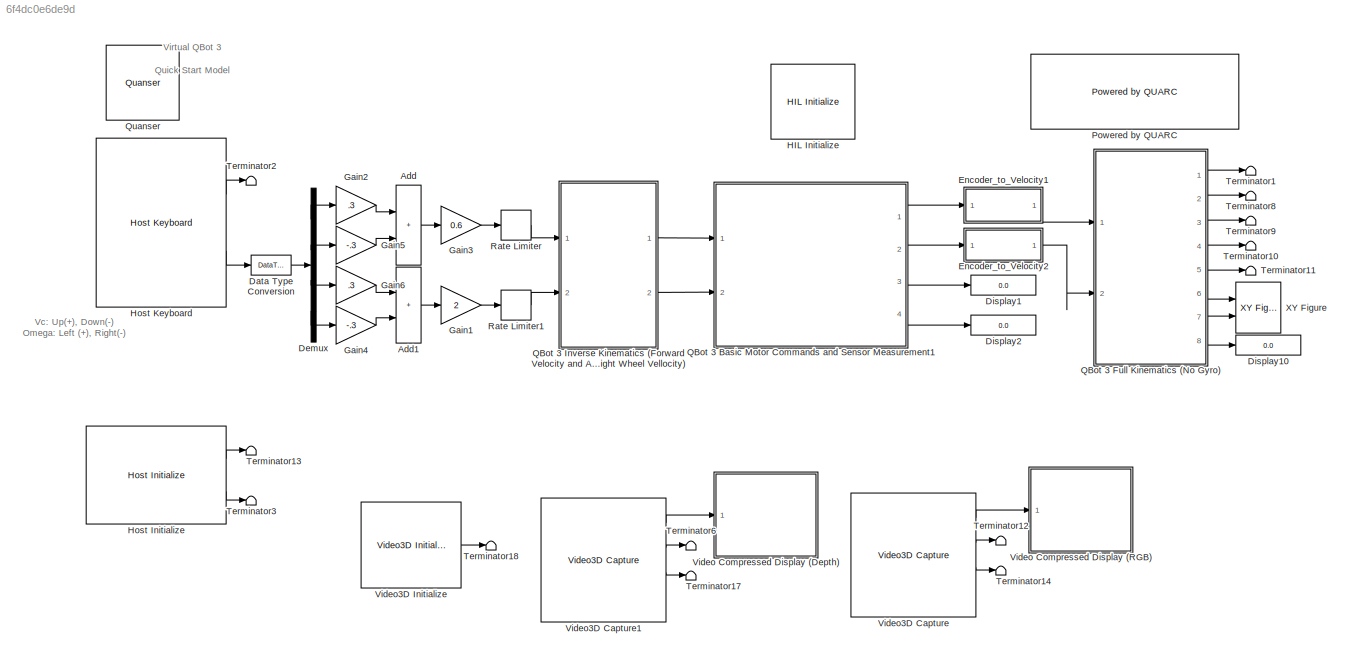
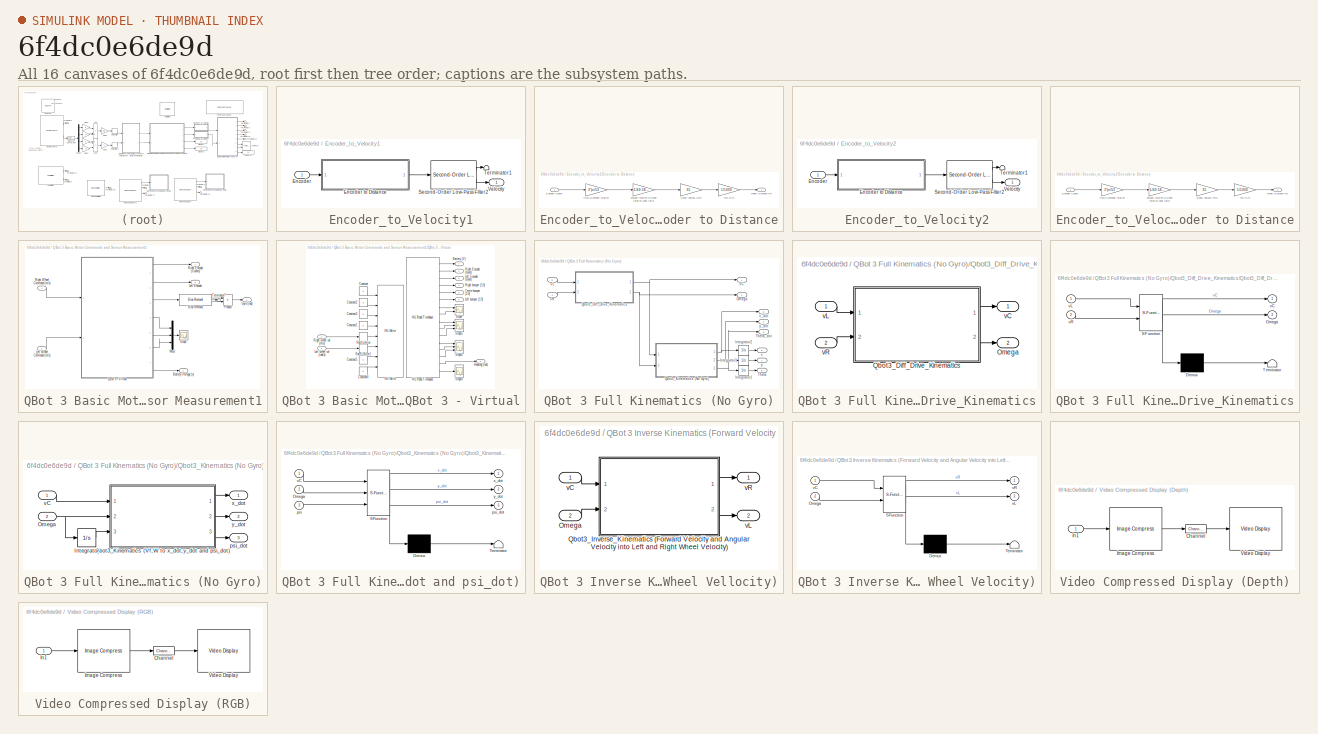
[diagram: thumbnail index - all 16 canvases of the model, root first then tree order]
MODEL slx_6f4dc0e6de9d
KIND model
CONFIG AbsTol = auto
CONFIG EnableMultiTasking = on
CONFIG FixedStep = 0.01
CONFIG MaxStep = auto
CONFIG MinStep = auto
CONFIG RelTol = 1e-3
CONFIG SampleTimeConstraint = Unconstrained
CONFIG SolverName = ode1
CONFIG StartTime = 0.0
CONFIG StopTime = inf
BLOCK [Sum] Add
  IconShape = rectangular
  Ports = [2, 1]
BLOCK [Sum] Add1
  IconShape = rectangular
  Ports = [2, 1]
BLOCK [DataTypeConversion] Data Type Conversion
  RndMeth = Floor
  SaturateOnIntegerOverflow = off
BLOCK [Demux] Demux
  Ports = [1, 4]
BLOCK [Display] Display1
  Ports = [1]
BLOCK [Display] Display10
  Ports = [1]
BLOCK [Display] Display2
  Ports = [1]
BLOCK [SubSystem] Encoder_to_Velocity1
  Ports = [1, 1]
BLOCK [Inport] Encoder_to_Velocity1/Encoder
BLOCK [SubSystem] Encoder_to_Velocity1/Encoder to Distance
  Ports = [1, 1]
BLOCK [Gain] Encoder_to_Velocity1/Encoder to Distance/ encoder rotation to wheel rotation (gear ratio)
  Gain = 1/49.5833
BLOCK [Inport] Encoder_to_Velocity1/Encoder to Distance/Encoder Counts
BLOCK [Outport] Encoder_to_Velocity1/Encoder to Distance/Wheel Distance (m)
BLOCK [Gain] Encoder_to_Velocity1/Encoder to Distance/mm to m
  Gain = 1/1000
BLOCK [Gain] Encoder_to_Velocity1/Encoder to Distance/ticks to encoder rotation
  Gain = 2*pi/52
BLOCK [Gain] Encoder_to_Velocity1/Encoder to Distance/wheel radious (mm)
  Gain = 35
BLOCK [Reference] Encoder_to_Velocity1/Second-Order Low-Pass Filter2  REF=quarc_library/Continuous/Second-Order
Low-Pass Filter
  Ports = [1, 2]
  SourceBlock = quarc_library/Continuous/Second-Order\nLow-Pass Filter
  SourceProductName = QUARC Targets
  SourceType = Second-Order Low-Pass Filter
BLOCK [Terminator] Encoder_to_Velocity1/Terminator1
BLOCK [Outport] Encoder_to_Velocity1/Velocity
BLOCK [SubSystem] Encoder_to_Velocity2
  Ports = [1, 1]
BLOCK [Inport] Encoder_to_Velocity2/Encoder
BLOCK [SubSystem] Encoder_to_Velocity2/Encoder to Distance
  Ports = [1, 1]
BLOCK [Gain] Encoder_to_Velocity2/Encoder to Distance/ encoder rotation to wheel rotation (gear ratio)
  Gain = 1/49.5833
BLOCK [Inport] Encoder_to_Velocity2/Encoder to Distance/Encoder Counts
BLOCK [Outport] Encoder_to_Velocity2/Encoder to Distance/Wheel Distance (m)
BLOCK [Gain] Encoder_to_Velocity2/Encoder to Distance/mm to m
  Gain = 1/1000
BLOCK [Gain] Encoder_to_Velocity2/Encoder to Distance/ticks to encoder rotation
  Gain = 2*pi/52
BLOCK [Gain] Encoder_to_Velocity2/Encoder to Distance/wheel radious (mm)
  Gain = 35
BLOCK [Reference] Encoder_to_Velocity2/Second-Order Low-Pass Filter2  REF=quarc_library/Continuous/Second-Order
Low-Pass Filter
  Ports = [1, 2]
  SourceBlock = quarc_library/Continuous/Second-Order\nLow-Pass Filter
  SourceProductName = QUARC Targets
  SourceType = Second-Order Low-Pass Filter
BLOCK [Terminator] Encoder_to_Velocity2/Terminator1
BLOCK [Outport] Encoder_to_Velocity2/Velocity
BLOCK [Gain] Gain1
  Gain = 2
BLOCK [Gain] Gain2
  Gain = .3
BLOCK [Gain] Gain3
  Gain = 0.6
BLOCK [Gain] Gain4
  Gain = -.3
BLOCK [Gain] Gain5
  Gain = -.3
BLOCK [Gain] Gain6
  Gain = .3
BLOCK [Reference] HIL Initialize  REF=quarc_library/Data Acquisition/Generic/Configuration/HIL Initialize
  AttributesFormatString = %<object_name> (%<board_type>-%<board_number>)
  Ports = []
  Priority = -99
  SourceBlock = quarc_library/Data Acquisition/Generic/Configuration/HIL Initialize
  SourceProductName = QUARC Targets
  SourceType = HIL Initialize
  UserDataPersistent = on
BLOCK [Reference] Host Initialize  REF=quarc_library/Devices/Peripherals/Host/Host Initialize
  Ports = [0, 2]
  SourceBlock = quarc_library/Devices/Peripherals/Host/Host Initialize
  SourceProductName = QUARC Targets
  SourceType = Host Initialize
BLOCK [Reference] Host Keyboard  REF=quarc_library/Devices/Peripherals/Host/Host Keyboard
  Ports = [0, 2]
  SourceBlock = quarc_library/Devices/Peripherals/Host/Host Keyboard
  SourceProductName = QUARC Targets
  SourceType = Host Keyboard
BLOCK [Reference] Powered by QUARC  REF=quarc_library/Logos/Powered by QUARC
  Ports = []
  SourceBlock = quarc_library/Logos/Powered by QUARC
  SourceProductName = QUARC Targets
  SourceType = Powered by QUARC
BLOCK [SubSystem] QBot 3 Basic Motor Commands and Sensor Measurement1
  Ports = [2, 4]
BLOCK [Outport] QBot 3 Basic Motor Commands and Sensor Measurement1/Battery Voltage (v)
  Port = 4
  VectorParamsAs1DForOutWhenUnconnected = off
BLOCK [Reference] QBot 3 Basic Motor Commands and Sensor Measurement1/Bias Removal  REF=quarc_library/Discrete/Bias Removal
  Ports = [1, 3]
  SourceBlock = quarc_library/Discrete/Bias Removal
  SourceProductName = QUARC Targets
  SourceType = Bias Removal
BLOCK [Outport] QBot 3 Basic Motor Commands and Sensor Measurement1/Gyro (rad)
  Port = 3
  VectorParamsAs1DForOutWhenUnconnected = off
BLOCK [Outport] QBot 3 Basic Motor Commands and Sensor Measurement1/Left Encoder
  Port = 2
  VectorParamsAs1DForOutWhenUnconnected = off
BLOCK [Inport] QBot 3 Basic Motor Commands and Sensor Measurement1/Left Wheel Command (m//s)
  Port = 2
BLOCK [Mux] QBot 3 Basic Motor Commands and Sensor Measurement1/Mux1
  DisplayOption = bar
  Inputs = 3
  Ports = [3, 1]
BLOCK [Product] QBot 3 Basic Motor Commands and Sensor Measurement1/Product
  Ports = [2, 1]
  RndMeth = Zero
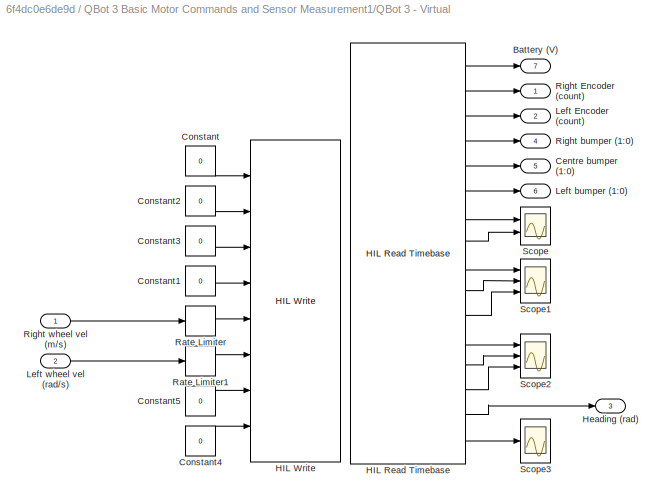
BLOCK [SubSystem] QBot 3 Basic Motor Commands and Sensor Measurement1/QBot 3 - Virtual
  Ports = [2, 7]
BLOCK [Outport] QBot 3 Basic Motor Commands and Sensor Measurement1/QBot 3 - Virtual/Battery (V)
  NameLocation = right
  Port = 7
BLOCK [Outport] QBot 3 Basic Motor Commands and Sensor Measurement1/QBot 3 - Virtual/Centre bumper (1:0)
  NameLocation = right
  Port = 5
BLOCK [Constant] QBot 3 Basic Motor Commands and Sensor Measurement1/QBot 3 - Virtual/Constant
  Value = 0
BLOCK [Constant] QBot 3 Basic Motor Commands and Sensor Measurement1/QBot 3 - Virtual/Constant1
  Value = 0
BLOCK [Constant] QBot 3 Basic Motor Commands and Sensor Measurement1/QBot 3 - Virtual/Constant2
  Value = 0
BLOCK [Constant] QBot 3 Basic Motor Commands and Sensor Measurement1/QBot 3 - Virtual/Constant3
  Value = 0
BLOCK [Constant] QBot 3 Basic Motor Commands and Sensor Measurement1/QBot 3 - Virtual/Constant4
  Value = 0
BLOCK [Constant] QBot 3 Basic Motor Commands and Sensor Measurement1/QBot 3 - Virtual/Constant5
  Value = 0
BLOCK [Reference] QBot 3 Basic Motor Commands and Sensor Measurement1/QBot 3 - Virtual/HIL Read Timebase  REF=quarc_library/Data Acquisition/Generic/Timebases/HIL Read
Timebase
  AttributesFormatString = (%<object_name>)
  Ports = [0, 16]
  SourceBlock = quarc_library/Data Acquisition/Generic/Timebases/HIL Read\nTimebase
  SourceProductName = QUARC Targets
  SourceType = HIL Read Timebase
  UserDataPersistent = on
BLOCK [Reference] QBot 3 Basic Motor Commands and Sensor Measurement1/QBot 3 - Virtual/HIL Write  REF=quarc_library/Data Acquisition/Generic/Immediate I//O/HIL Write
  AttributesFormatString = (%<object_name>)
  Ports = [8]
  SourceBlock = quarc_library/Data Acquisition/Generic/Immediate I//O/HIL Write
  SourceProductName = QUARC Targets
  SourceType = HIL Write
  UserDataPersistent = on
BLOCK [Outport] QBot 3 Basic Motor Commands and Sensor Measurement1/QBot 3 - Virtual/Heading (rad)
  Port = 3
BLOCK [Outport] QBot 3 Basic Motor Commands and Sensor Measurement1/QBot 3 - Virtual/Left Encoder (count)
  NameLocation = right
  Port = 2
BLOCK [Outport] QBot 3 Basic Motor Commands and Sensor Measurement1/QBot 3 - Virtual/Left bumper (1:0)
  NameLocation = right
  Port = 6
BLOCK [Inport] QBot 3 Basic Motor Commands and Sensor Measurement1/QBot 3 - Virtual/Left wheel vel (rad//s)
  Port = 2
BLOCK [RateLimiter] QBot 3 Basic Motor Commands and Sensor Measurement1/QBot 3 - Virtual/Rate Limiter
  FallingSlewLimit = -0.75
  RisingSlewLimit = 0.75
  SampleTimeMode = inherited
BLOCK [RateLimiter] QBot 3 Basic Motor Commands and Sensor Measurement1/QBot 3 - Virtual/Rate Limiter1
  FallingSlewLimit = -0.75
  RisingSlewLimit = 0.75
  SampleTimeMode = inherited
BLOCK [Outport] QBot 3 Basic Motor Commands and Sensor Measurement1/QBot 3 - Virtual/Right Encoder (count)
  NameLocation = right
BLOCK [Outport] QBot 3 Basic Motor Commands and Sensor Measurement1/QBot 3 - Virtual/Right bumper (1:0)
  NameLocation = right
  Port = 4
BLOCK [Inport] QBot 3 Basic Motor Commands and Sensor Measurement1/QBot 3 - Virtual/Right wheel vel (m//s)
BLOCK [Scope] QBot 3 Basic Motor Commands and Sensor Measurement1/QBot 3 - Virtual/Scope
  Floating = off
  NumInputPorts = 2
  Ports = [2]
  ScopeSpecificationString = Simulink.scopes.TimeScopeBlockCfg('CurrentConfiguration', extmgr.ConfigurationSet(extmgr.Configuration('Core','General UI',true),extmgr.Configuration('Core','Source UI',true),extmgr.Configuration('Sources','WiredSimulink',true,'DataLoggingVariableName','ScopeData2'),extmgr.Configuration('Visuals','Time Domain',true,'SerializedDisplays',{struct('MinYLimReal','0.9','MaxYLimReal','1.1','YLabelReal','...<+1348ch>
BLOCK [Scope] QBot 3 Basic Motor Commands and Sensor Measurement1/QBot 3 - Virtual/Scope1
  Floating = off
  NumInputPorts = 3
  Ports = [3]
  ScopeSpecificationString = Simulink.scopes.TimeScopeBlockCfg('CurrentConfiguration', extmgr.ConfigurationSet(extmgr.Configuration('Core','General UI',true),extmgr.Configuration('Core','Source UI',true),extmgr.Configuration('Sources','WiredSimulink',true,'DataLoggingVariableName','ScopeData3'),extmgr.Configuration('Visuals','Time Domain',true,'SerializedDisplays',{struct('MinYLimReal','0.9','MaxYLimReal','1.1','YLabelReal','...<+1363ch>
BLOCK [Scope] QBot 3 Basic Motor Commands and Sensor Measurement1/QBot 3 - Virtual/Scope2
  Floating = off
  NumInputPorts = 3
  Ports = [3]
  ScopeSpecificationString = Simulink.scopes.TimeScopeBlockCfg('CurrentConfiguration', extmgr.ConfigurationSet(extmgr.Configuration('Core','General UI',true),extmgr.Configuration('Core','Source UI',true),extmgr.Configuration('Sources','WiredSimulink',true,'DataLoggingVariableName','ScopeData4'),extmgr.Configuration('Visuals','Time Domain',true,'SerializedDisplays',{struct('MinYLimReal','-1.00000','MaxYLimReal','1.00000','YLab...<+1423ch>
BLOCK [Scope] QBot 3 Basic Motor Commands and Sensor Measurement1/QBot 3 - Virtual/Scope3
  Floating = off
  NumInputPorts = 1
  Ports = [1]
  ScopeSpecificationString = Simulink.scopes.TimeScopeBlockCfg('CurrentConfiguration', extmgr.ConfigurationSet(extmgr.Configuration('Core','General UI',true),extmgr.Configuration('Core','Source UI',true),extmgr.Configuration('Sources','WiredSimulink',true,'DataLoggingVariableName','ScopeData5'),extmgr.Configuration('Visuals','Time Domain',true,'SerializedDisplays',{struct('MinYLimReal','-0.3743','MaxYLimReal','0.04159','YLabe...<+1375ch>
BLOCK [Outport] QBot 3 Basic Motor Commands and Sensor Measurement1/Right Encoder (Counts)
  VectorParamsAs1DForOutWhenUnconnected = off
BLOCK [Inport] QBot 3 Basic Motor Commands and Sensor Measurement1/Right Wheel Command (m//s)
BLOCK [Scope] QBot 3 Basic Motor Commands and Sensor Measurement1/Scope
  Floating = off
  NumInputPorts = 1
  Ports = [1]
  ScopeSpecificationString = Simulink.scopes.TimeScopeBlockCfg('CurrentConfiguration', extmgr.ConfigurationSet(extmgr.Configuration('Core','General UI',true),extmgr.Configuration('Core','Source UI',true),extmgr.Configuration('Sources','WiredSimulink',true,'DataLoggingVariableName','ScopeData1'),extmgr.Configuration('Visuals','Time Domain',true,'SerializedDisplays',{struct('MinYLimReal','-1.00000','MaxYLimReal','1.00000','YLab...<+1419ch>
BLOCK [Terminator] QBot 3 Basic Motor Commands and Sensor Measurement1/Terminator7
BLOCK [SubSystem] QBot 3 Full Kinematics (No Gyro)
  Ports = [2, 8]
BLOCK [Integrator] QBot 3 Full Kinematics (No Gyro)/Integrator1
  Ports = [1, 1]
BLOCK [Integrator] QBot 3 Full Kinematics (No Gyro)/Integrator2
  Ports = [1, 1]
BLOCK [Integrator] QBot 3 Full Kinematics (No Gyro)/Integrator3
  Ports = [1, 1]
BLOCK [Outport] QBot 3 Full Kinematics (No Gyro)/Omega
  Port = 2
BLOCK [SubSystem] QBot 3 Full Kinematics (No Gyro)/Qbot3_Diff_Drive_Kinematics
  Ports = [2, 2]
BLOCK [Outport] QBot 3 Full Kinematics (No Gyro)/Qbot3_Diff_Drive_Kinematics/Omega
  Port = 2
BLOCK [SubSystem] QBot 3 Full Kinematics (No Gyro)/Qbot3_Diff_Drive_Kinematics/Qbot3_Diff_Drive_Kinematics
  ErrorFcn = Stateflow.Translate.translate
  PermitHierarchicalResolution = ExplicitOnly
  Ports = [2, 2]
  SFBlockType = MATLAB Function
  TreatAsAtomicUnit = on
BLOCK [Demux] QBot 3 Full Kinematics (No Gyro)/Qbot3_Diff_Drive_Kinematics/Qbot3_Diff_Drive_Kinematics/ Demux 
  Outputs = 1
  Ports = [1, 1]
BLOCK [S-Function] QBot 3 Full Kinematics (No Gyro)/Qbot3_Diff_Drive_Kinematics/Qbot3_Diff_Drive_Kinematics/ SFunction 
  EnableBusSupport = on
  FunctionName = sf_sfun
  PortCounts = [2 3]
  Ports = [2, 3]
  SFcnIsStateOwnerBlock = off
  SFunctionDeploymentMode = off
  Tag = Stateflow S-Function 2
BLOCK [Terminator] QBot 3 Full Kinematics (No Gyro)/Qbot3_Diff_Drive_Kinematics/Qbot3_Diff_Drive_Kinematics/ Terminator 
BLOCK [Outport] QBot 3 Full Kinematics (No Gyro)/Qbot3_Diff_Drive_Kinematics/Qbot3_Diff_Drive_Kinematics/Omega
  Port = 2
BLOCK [Outport] QBot 3 Full Kinematics (No Gyro)/Qbot3_Diff_Drive_Kinematics/Qbot3_Diff_Drive_Kinematics/vC
BLOCK [Inport] QBot 3 Full Kinematics (No Gyro)/Qbot3_Diff_Drive_Kinematics/Qbot3_Diff_Drive_Kinematics/vL
BLOCK [Inport] QBot 3 Full Kinematics (No Gyro)/Qbot3_Diff_Drive_Kinematics/Qbot3_Diff_Drive_Kinematics/vR
  Port = 2
BLOCK [Outport] QBot 3 Full Kinematics (No Gyro)/Qbot3_Diff_Drive_Kinematics/vC
BLOCK [Inport] QBot 3 Full Kinematics (No Gyro)/Qbot3_Diff_Drive_Kinematics/vL
BLOCK [Inport] QBot 3 Full Kinematics (No Gyro)/Qbot3_Diff_Drive_Kinematics/vR
  Port = 2
BLOCK [SubSystem] QBot 3 Full Kinematics (No Gyro)/Qbot3_Kinematics (No Gyro)
  Ports = [2, 3]
BLOCK [Integrator] QBot 3 Full Kinematics (No Gyro)/Qbot3_Kinematics (No Gyro)/Integrator
  Ports = [1, 1]
BLOCK [Inport] QBot 3 Full Kinematics (No Gyro)/Qbot3_Kinematics (No Gyro)/Omega
  Port = 2
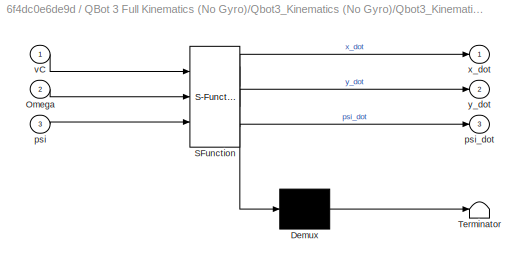
BLOCK [SubSystem] QBot 3 Full Kinematics (No Gyro)/Qbot3_Kinematics (No Gyro)/Qbot3_Kinematics (Vf,W to x_dot,y_dot and psi_dot)
  ErrorFcn = Stateflow.Translate.translate
  PermitHierarchicalResolution = ExplicitOnly
  Ports = [3, 3]
  SFBlockType = MATLAB Function
  TreatAsAtomicUnit = on
BLOCK [Demux] QBot 3 Full Kinematics (No Gyro)/Qbot3_Kinematics (No Gyro)/Qbot3_Kinematics (Vf,W to x_dot,y_dot and psi_dot)/ Demux 
  Outputs = 1
  Ports = [1, 1]
BLOCK [S-Function] QBot 3 Full Kinematics (No Gyro)/Qbot3_Kinematics (No Gyro)/Qbot3_Kinematics (Vf,W to x_dot,y_dot and psi_dot)/ SFunction 
  EnableBusSupport = on
  FunctionName = sf_sfun
  PortCounts = [3 4]
  Ports = [3, 4]
  SFcnIsStateOwnerBlock = off
  SFunctionDeploymentMode = off
  Tag = Stateflow S-Function 3
BLOCK [Terminator] QBot 3 Full Kinematics (No Gyro)/Qbot3_Kinematics (No Gyro)/Qbot3_Kinematics (Vf,W to x_dot,y_dot and psi_dot)/ Terminator 
BLOCK [Inport] QBot 3 Full Kinematics (No Gyro)/Qbot3_Kinematics (No Gyro)/Qbot3_Kinematics (Vf,W to x_dot,y_dot and psi_dot)/Omega
  Port = 2
BLOCK [Inport] QBot 3 Full Kinematics (No Gyro)/Qbot3_Kinematics (No Gyro)/Qbot3_Kinematics (Vf,W to x_dot,y_dot and psi_dot)/psi
  Port = 3
BLOCK [Outport] QBot 3 Full Kinematics (No Gyro)/Qbot3_Kinematics (No Gyro)/Qbot3_Kinematics (Vf,W to x_dot,y_dot and psi_dot)/psi_dot
  Port = 3
BLOCK [Inport] QBot 3 Full Kinematics (No Gyro)/Qbot3_Kinematics (No Gyro)/Qbot3_Kinematics (Vf,W to x_dot,y_dot and psi_dot)/vC
BLOCK [Outport] QBot 3 Full Kinematics (No Gyro)/Qbot3_Kinematics (No Gyro)/Qbot3_Kinematics (Vf,W to x_dot,y_dot and psi_dot)/x_dot
BLOCK [Outport] QBot 3 Full Kinematics (No Gyro)/Qbot3_Kinematics (No Gyro)/Qbot3_Kinematics (Vf,W to x_dot,y_dot and psi_dot)/y_dot
  Port = 2
BLOCK [Outport] QBot 3 Full Kinematics (No Gyro)/Qbot3_Kinematics (No Gyro)/psi_dot
  Port = 3
BLOCK [Inport] QBot 3 Full Kinematics (No Gyro)/Qbot3_Kinematics (No Gyro)/vC
BLOCK [Outport] QBot 3 Full Kinematics (No Gyro)/Qbot3_Kinematics (No Gyro)/x_dot
BLOCK [Outport] QBot 3 Full Kinematics (No Gyro)/Qbot3_Kinematics (No Gyro)/y_dot
  Port = 2
BLOCK [Outport] QBot 3 Full Kinematics (No Gyro)/Theta
  Port = 8
BLOCK [Outport] QBot 3 Full Kinematics (No Gyro)/Theta_dot
  Port = 5
BLOCK [Outport] QBot 3 Full Kinematics (No Gyro)/vC
BLOCK [Inport] QBot 3 Full Kinematics (No Gyro)/vL
  Port = 2
BLOCK [Inport] QBot 3 Full Kinematics (No Gyro)/vR
BLOCK [Outport] QBot 3 Full Kinematics (No Gyro)/x
  Port = 6
BLOCK [Outport] QBot 3 Full Kinematics (No Gyro)/x_dot
  Port = 3
BLOCK [Outport] QBot 3 Full Kinematics (No Gyro)/y
  Port = 7
BLOCK [Outport] QBot 3 Full Kinematics (No Gyro)/y_dot
  Port = 4
BLOCK [SubSystem] QBot 3 Inverse Kinematics (Forward Velocity and Angular Velocity into Left and Right Wheel Vellocity)
  Ports = [2, 2]
BLOCK [Inport] QBot 3 Inverse Kinematics (Forward Velocity and Angular Velocity into Left and Right Wheel Vellocity)/Omega
  Port = 2
BLOCK [SubSystem] QBot 3 Inverse Kinematics (Forward Velocity and Angular Velocity into Left and Right Wheel Vellocity)/Qbot3_Inverse_Kinematics (Forward Velocity and Angular Velocity into Left and Right Wheel Velocity)
  ErrorFcn = Stateflow.Translate.translate
  PermitHierarchicalResolution = ExplicitOnly
  Ports = [2, 2]
  SFBlockType = MATLAB Function
  TreatAsAtomicUnit = on
BLOCK [Demux] QBot 3 Inverse Kinematics (Forward Velocity and Angular Velocity into Left and Right Wheel Vellocity)/Qbot3_Inverse_Kinematics (Forward Velocity and Angular Velocity into Left and Right Wheel Velocity)/ Demux 
  Outputs = 1
  Ports = [1, 1]
BLOCK [S-Function] QBot 3 Inverse Kinematics (Forward Velocity and Angular Velocity into Left and Right Wheel Vellocity)/Qbot3_Inverse_Kinematics (Forward Velocity and Angular Velocity into Left and Right Wheel Velocity)/ SFunction 
  EnableBusSupport = on
  FunctionName = sf_sfun
  PortCounts = [2 3]
  Ports = [2, 3]
  SFcnIsStateOwnerBlock = off
  SFunctionDeploymentMode = off
  Tag = Stateflow S-Function 10
BLOCK [Terminator] QBot 3 Inverse Kinematics (Forward Velocity and Angular Velocity into Left and Right Wheel Vellocity)/Qbot3_Inverse_Kinematics (Forward Velocity and Angular Velocity into Left and Right Wheel Velocity)/ Terminator 
BLOCK [Inport] QBot 3 Inverse Kinematics (Forward Velocity and Angular Velocity into Left and Right Wheel Vellocity)/Qbot3_Inverse_Kinematics (Forward Velocity and Angular Velocity into Left and Right Wheel Velocity)/Omega
  Port = 2
BLOCK [Inport] QBot 3 Inverse Kinematics (Forward Velocity and Angular Velocity into Left and Right Wheel Vellocity)/Qbot3_Inverse_Kinematics (Forward Velocity and Angular Velocity into Left and Right Wheel Velocity)/vC
BLOCK [Outport] QBot 3 Inverse Kinematics (Forward Velocity and Angular Velocity into Left and Right Wheel Vellocity)/Qbot3_Inverse_Kinematics (Forward Velocity and Angular Velocity into Left and Right Wheel Velocity)/vL
  Port = 2
  VectorParamsAs1DForOutWhenUnconnected = off
BLOCK [Outport] QBot 3 Inverse Kinematics (Forward Velocity and Angular Velocity into Left and Right Wheel Vellocity)/Qbot3_Inverse_Kinematics (Forward Velocity and Angular Velocity into Left and Right Wheel Velocity)/vR
  VectorParamsAs1DForOutWhenUnconnected = off
BLOCK [Inport] QBot 3 Inverse Kinematics (Forward Velocity and Angular Velocity into Left and Right Wheel Vellocity)/vC
BLOCK [Outport] QBot 3 Inverse Kinematics (Forward Velocity and Angular Velocity into Left and Right Wheel Vellocity)/vL
  Port = 2
  VectorParamsAs1DForOutWhenUnconnected = off
BLOCK [Outport] QBot 3 Inverse Kinematics (Forward Velocity and Angular Velocity into Left and Right Wheel Vellocity)/vR
  VectorParamsAs1DForOutWhenUnconnected = off
BLOCK [Reference] Quanser  REF=quarc_library/Logos/Quanser
  Ports = []
  SourceBlock = quarc_library/Logos/Quanser
  SourceProductName = QUARC Targets
  SourceType = Powered by Quanser
BLOCK [RateLimiter] Rate Limiter
  SampleTimeMode = inherited
BLOCK [RateLimiter] Rate Limiter1
  SampleTimeMode = inherited
BLOCK [Terminator] Terminator1
BLOCK [Terminator] Terminator10
BLOCK [Terminator] Terminator11
BLOCK [Terminator] Terminator12
BLOCK [Terminator] Terminator13
BLOCK [Terminator] Terminator14
BLOCK [Terminator] Terminator17
BLOCK [Terminator] Terminator18
BLOCK [Terminator] Terminator2
BLOCK [Terminator] Terminator3
BLOCK [Terminator] Terminator6
BLOCK [Terminator] Terminator8
BLOCK [Terminator] Terminator9
BLOCK [SubSystem] Video Compressed Display (Depth)
  CopyFcn = set_param(gcbh, 'UserData', gcb);\nset_param(gcbh, 'LinkStatus', 'none');
  LoadFcn = set_param(gcbh, 'UserData', gcb);
  NameChangeFcn = video_display_show([get_param(gcbh, 'UserData'), '/Video Display'], 'rename', [gcb, '/Video Display']);\nvideo_display_show([gcb, '/Video Display'], 'add', gcb);\nset_param(gcbh, 'UserData', gcb);
  OpenFcn = video_display_show([gcb, '/Video Display'], 'show', gcb);
  Ports = [1]
  PreDeleteFcn = video_display_show([gcb, '/Video Display'], 'delete');
  StartFcn = video_display_show([gcb, '/Video Display'], 'add', gcb);
  UndoDeleteFcn = set_param(gcbh, 'UserData', gcb);
BLOCK [Reference] Video Compressed Display (Depth)/Channel  REF=quarc_library/Signal Routing/Channel
  Ports = [1, 1]
  SourceBlock = quarc_library/Signal Routing/Channel
  SourceProductName = QUARC Targets
  SourceType = Channel
BLOCK [Reference] Video Compressed Display (Depth)/Image Compress  REF=quarc_library/Image Processing/Generic/Image Compress
  AttributesFormatString = (%<algorithm>)
  Ports = [1, 1]
  SourceBlock = quarc_library/Image Processing/Generic/Image Compress
  SourceProductName = QUARC Targets
  SourceType = Image Compress
BLOCK [Inport] Video Compressed Display (Depth)/In1
BLOCK [Reference] Video Compressed Display (Depth)/Video Display  REF=quarc_library/Multimedia/Video Display
  Ports = [1]
  SourceBlock = quarc_library/Multimedia/Video Display
  SourceProductName = QUARC Targets
  SourceType = Video Display
  Tag = virtual_qbot3_quick_start_2021/Video Compressed\nDisplay (Depth)/Video Display
  UserDataPersistent = on
BLOCK [SubSystem] Video Compressed Display (RGB)
  CopyFcn = set_param(gcbh, 'UserData', gcb);\nset_param(gcbh, 'LinkStatus', 'none');
  LoadFcn = set_param(gcbh, 'UserData', gcb);
  NameChangeFcn = video_display_show([get_param(gcbh, 'UserData'), '/Video Display'], 'rename', [gcb, '/Video Display']);\nvideo_display_show([gcb, '/Video Display'], 'add', gcb);\nset_param(gcbh, 'UserData', gcb);
  OpenFcn = video_display_show([gcb, '/Video Display'], 'show', gcb);
  Ports = [1]
  PreDeleteFcn = video_display_show([gcb, '/Video Display'], 'delete');
  StartFcn = video_display_show([gcb, '/Video Display'], 'add', gcb);
  UndoDeleteFcn = set_param(gcbh, 'UserData', gcb);
BLOCK [Reference] Video Compressed Display (RGB)/Channel  REF=quarc_library/Signal Routing/Channel
  Ports = [1, 1]
  SourceBlock = quarc_library/Signal Routing/Channel
  SourceProductName = QUARC Targets
  SourceType = Channel
BLOCK [Reference] Video Compressed Display (RGB)/Image Compress  REF=quarc_library/Image Processing/Generic/Image Compress
  AttributesFormatString = (%<algorithm>)
  Ports = [1, 1]
  SourceBlock = quarc_library/Image Processing/Generic/Image Compress
  SourceProductName = QUARC Targets
  SourceType = Image Compress
BLOCK [Inport] Video Compressed Display (RGB)/In1
BLOCK [Reference] Video Compressed Display (RGB)/Video Display  REF=quarc_library/Multimedia/Video Display
  Ports = [1]
  SourceBlock = quarc_library/Multimedia/Video Display
  SourceProductName = QUARC Targets
  SourceType = Video Display
  Tag = virtual_qbot3_quick_start_2021/Video Compressed\nDisplay (RGB)/Video Display
  UserDataPersistent = on
BLOCK [Reference] Video3D Capture  REF=quarc_library/Multimedia/Video3D Capture
  Ports = [0, 4]
  SourceBlock = quarc_library/Multimedia/Video3D Capture
  SourceProductName = QUARC Targets
  SourceType = Video3D Capture
  UserDataPersistent = on
BLOCK [Reference] Video3D Capture1  REF=quarc_library/Multimedia/Video3D Capture
  Ports = [0, 4]
  SourceBlock = quarc_library/Multimedia/Video3D Capture
  SourceProductName = QUARC Targets
  SourceType = Video3D Capture
  UserDataPersistent = on
BLOCK [Reference] Video3D Initialize  REF=quarc_library/Multimedia/Video3D Initialize
  Ports = [0, 1]
  SourceBlock = quarc_library/Multimedia/Video3D Initialize
  SourceProductName = QUARC Targets
  SourceType = Video3D Initialize
BLOCK [Reference] XY Figure  REF=quarc_library/Sinks/Figures/XY Figure
  NameLocation = right
  Ports = [2]
  SourceBlock = quarc_library/Sinks/Figures/XY Figure
  SourceProductName = QUARC Targets
  SourceType = XY Figure
ANNOTATION (root): Virtual QBot 3 Quick Start Model
ANNOTATION (root): Vc: Up(+), Down(-) Omega: Left (+), Right(-)
LINE Add1:1 -> Gain1:1
LINE Add:1 -> Gain3:1
LINE Data Type Conversion:1 -> Demux:1
LINE Demux:1 -> Gain2:1
LINE Demux:2 -> Gain5:1
LINE Demux:3 -> Gain6:1
LINE Demux:4 -> Gain4:1
LINE Encoder_to_Velocity1/Encoder to Distance/ encoder rotation to wheel rotation (gear ratio):1 -> Encoder_to_Velocity1/Encoder to Distance/wheel radious (mm):1
LINE Encoder_to_Velocity1/Encoder to Distance/Encoder Counts:1 -> Encoder_to_Velocity1/Encoder to Distance/ticks to encoder rotation:1
LINE Encoder_to_Velocity1/Encoder to Distance/mm to m:1 -> Encoder_to_Velocity1/Encoder to Distance/Wheel Distance (m):1
LINE Encoder_to_Velocity1/Encoder to Distance/ticks to encoder rotation:1 -> Encoder_to_Velocity1/Encoder to Distance/ encoder rotation to wheel rotation (gear ratio):1
LINE Encoder_to_Velocity1/Encoder to Distance/wheel radious (mm):1 -> Encoder_to_Velocity1/Encoder to Distance/mm to m:1
LINE Encoder_to_Velocity1/Encoder to Distance:1 -> Encoder_to_Velocity1/Second-Order Low-Pass Filter2:1
LINE Encoder_to_Velocity1/Encoder:1 -> Encoder_to_Velocity1/Encoder to Distance:1
LINE Encoder_to_Velocity1/Second-Order Low-Pass Filter2:1 -> Encoder_to_Velocity1/Terminator1:1
LINE Encoder_to_Velocity1/Second-Order Low-Pass Filter2:2 -> Encoder_to_Velocity1/Velocity:1
LINE Encoder_to_Velocity1:1 -> QBot 3 Full Kinematics (No Gyro):1
LINE Encoder_to_Velocity2/Encoder to Distance/ encoder rotation to wheel rotation (gear ratio):1 -> Encoder_to_Velocity2/Encoder to Distance/wheel radious (mm):1
LINE Encoder_to_Velocity2/Encoder to Distance/Encoder Counts:1 -> Encoder_to_Velocity2/Encoder to Distance/ticks to encoder rotation:1
LINE Encoder_to_Velocity2/Encoder to Distance/mm to m:1 -> Encoder_to_Velocity2/Encoder to Distance/Wheel Distance (m):1
LINE Encoder_to_Velocity2/Encoder to Distance/ticks to encoder rotation:1 -> Encoder_to_Velocity2/Encoder to Distance/ encoder rotation to wheel rotation (gear ratio):1
LINE Encoder_to_Velocity2/Encoder to Distance/wheel radious (mm):1 -> Encoder_to_Velocity2/Encoder to Distance/mm to m:1
LINE Encoder_to_Velocity2/Encoder to Distance:1 -> Encoder_to_Velocity2/Second-Order Low-Pass Filter2:1
LINE Encoder_to_Velocity2/Encoder:1 -> Encoder_to_Velocity2/Encoder to Distance:1
LINE Encoder_to_Velocity2/Second-Order Low-Pass Filter2:1 -> Encoder_to_Velocity2/Terminator1:1
LINE Encoder_to_Velocity2/Second-Order Low-Pass Filter2:2 -> Encoder_to_Velocity2/Velocity:1
LINE Encoder_to_Velocity2:1 -> QBot 3 Full Kinematics (No Gyro):2
LINE Gain1:1 -> Rate Limiter1:1
LINE Gain2:1 -> Add:1
LINE Gain3:1 -> Rate Limiter:1
LINE Gain4:1 -> Add1:2
LINE Gain5:1 -> Add:2
LINE Gain6:1 -> Add1:1
LINE Host Initialize:1 -> Terminator13:1
LINE Host Initialize:2 -> Terminator3:1
LINE Host Keyboard:1 -> Terminator2:1
LINE Host Keyboard:2 -> Data Type Conversion:1
LINE QBot 3 Basic Motor Commands and Sensor Measurement1/Bias Removal:1 -> QBot 3 Basic Motor Commands and Sensor Measurement1/Product:1
LINE QBot 3 Basic Motor Commands and Sensor Measurement1/Bias Removal:2 -> QBot 3 Basic Motor Commands and Sensor Measurement1/Terminator7:1
LINE QBot 3 Basic Motor Commands and Sensor Measurement1/Bias Removal:3 -> QBot 3 Basic Motor Commands and Sensor Measurement1/Product:2
LINE QBot 3 Basic Motor Commands and Sensor Measurement1/Left Wheel Command (m//s):1 -> QBot 3 Basic Motor Commands and Sensor Measurement1/QBot 3 - Virtual:2
LINE QBot 3 Basic Motor Commands and Sensor Measurement1/Mux1:1 -> QBot 3 Basic Motor Commands and Sensor Measurement1/Scope:1
LINE QBot 3 Basic Motor Commands and Sensor Measurement1/Product:1 -> QBot 3 Basic Motor Commands and Sensor Measurement1/Gyro (rad):1
LINE QBot 3 Basic Motor Commands and Sensor Measurement1/QBot 3 - Virtual/Constant1:1 -> QBot 3 Basic Motor Commands and Sensor Measurement1/QBot 3 - Virtual/HIL Write:4
LINE QBot 3 Basic Motor Commands and Sensor Measurement1/QBot 3 - Virtual/Constant2:1 -> QBot 3 Basic Motor Commands and Sensor Measurement1/QBot 3 - Virtual/HIL Write:2
LINE QBot 3 Basic Motor Commands and Sensor Measurement1/QBot 3 - Virtual/Constant3:1 -> QBot 3 Basic Motor Commands and Sensor Measurement1/QBot 3 - Virtual/HIL Write:3
LINE QBot 3 Basic Motor Commands and Sensor Measurement1/QBot 3 - Virtual/Constant4:1 -> QBot 3 Basic Motor Commands and Sensor Measurement1/QBot 3 - Virtual/HIL Write:8
LINE QBot 3 Basic Motor Commands and Sensor Measurement1/QBot 3 - Virtual/Constant5:1 -> QBot 3 Basic Motor Commands and Sensor Measurement1/QBot 3 - Virtual/HIL Write:7
LINE QBot 3 Basic Motor Commands and Sensor Measurement1/QBot 3 - Virtual/Constant:1 -> QBot 3 Basic Motor Commands and Sensor Measurement1/QBot 3 - Virtual/HIL Write:1
LINE QBot 3 Basic Motor Commands and Sensor Measurement1/QBot 3 - Virtual/HIL Read Timebase:1 -> QBot 3 Basic Motor Commands and Sensor Measurement1/QBot 3 - Virtual/Battery (V):1
LINE QBot 3 Basic Motor Commands and Sensor Measurement1/QBot 3 - Virtual/HIL Read Timebase:10 -> QBot 3 Basic Motor Commands and Sensor Measurement1/QBot 3 - Virtual/Scope1:2
LINE QBot 3 Basic Motor Commands and Sensor Measurement1/QBot 3 - Virtual/HIL Read Timebase:11 -> QBot 3 Basic Motor Commands and Sensor Measurement1/QBot 3 - Virtual/Scope1:3
LINE QBot 3 Basic Motor Commands and Sensor Measurement1/QBot 3 - Virtual/HIL Read Timebase:12 -> QBot 3 Basic Motor Commands and Sensor Measurement1/QBot 3 - Virtual/Scope2:1
LINE QBot 3 Basic Motor Commands and Sensor Measurement1/QBot 3 - Virtual/HIL Read Timebase:13 -> QBot 3 Basic Motor Commands and Sensor Measurement1/QBot 3 - Virtual/Scope2:2
LINE QBot 3 Basic Motor Commands and Sensor Measurement1/QBot 3 - Virtual/HIL Read Timebase:14 -> QBot 3 Basic Motor Commands and Sensor Measurement1/QBot 3 - Virtual/Scope2:3
LINE QBot 3 Basic Motor Commands and Sensor Measurement1/QBot 3 - Virtual/HIL Read Timebase:15 -> QBot 3 Basic Motor Commands and Sensor Measurement1/QBot 3 - Virtual/Heading (rad):1
LINE QBot 3 Basic Motor Commands and Sensor Measurement1/QBot 3 - Virtual/HIL Read Timebase:16 -> QBot 3 Basic Motor Commands and Sensor Measurement1/QBot 3 - Virtual/Scope3:1
LINE QBot 3 Basic Motor Commands and Sensor Measurement1/QBot 3 - Virtual/HIL Read Timebase:2 -> QBot 3 Basic Motor Commands and Sensor Measurement1/QBot 3 - Virtual/Right Encoder (count):1
LINE QBot 3 Basic Motor Commands and Sensor Measurement1/QBot 3 - Virtual/HIL Read Timebase:3 -> QBot 3 Basic Motor Commands and Sensor Measurement1/QBot 3 - Virtual/Left Encoder (count):1
LINE QBot 3 Basic Motor Commands and Sensor Measurement1/QBot 3 - Virtual/HIL Read Timebase:4 -> QBot 3 Basic Motor Commands and Sensor Measurement1/QBot 3 - Virtual/Right bumper (1:0):1
LINE QBot 3 Basic Motor Commands and Sensor Measurement1/QBot 3 - Virtual/HIL Read Timebase:5 -> QBot 3 Basic Motor Commands and Sensor Measurement1/QBot 3 - Virtual/Centre bumper (1:0):1
LINE QBot 3 Basic Motor Commands and Sensor Measurement1/QBot 3 - Virtual/HIL Read Timebase:6 -> QBot 3 Basic Motor Commands and Sensor Measurement1/QBot 3 - Virtual/Left bumper (1:0):1
LINE QBot 3 Basic Motor Commands and Sensor Measurement1/QBot 3 - Virtual/HIL Read Timebase:7 -> QBot 3 Basic Motor Commands and Sensor Measurement1/QBot 3 - Virtual/Scope:1
LINE QBot 3 Basic Motor Commands and Sensor Measurement1/QBot 3 - Virtual/HIL Read Timebase:8 -> QBot 3 Basic Motor Commands and Sensor Measurement1/QBot 3 - Virtual/Scope:2
LINE QBot 3 Basic Motor Commands and Sensor Measurement1/QBot 3 - Virtual/HIL Read Timebase:9 -> QBot 3 Basic Motor Commands and Sensor Measurement1/QBot 3 - Virtual/Scope1:1
LINE QBot 3 Basic Motor Commands and Sensor Measurement1/QBot 3 - Virtual/Left wheel vel (rad//s):1 -> QBot 3 Basic Motor Commands and Sensor Measurement1/QBot 3 - Virtual/Rate Limiter1:1
LINE QBot 3 Basic Motor Commands and Sensor Measurement1/QBot 3 - Virtual/Rate Limiter1:1 -> QBot 3 Basic Motor Commands and Sensor Measurement1/QBot 3 - Virtual/HIL Write:6
LINE QBot 3 Basic Motor Commands and Sensor Measurement1/QBot 3 - Virtual/Rate Limiter:1 -> QBot 3 Basic Motor Commands and Sensor Measurement1/QBot 3 - Virtual/HIL Write:5
LINE QBot 3 Basic Motor Commands and Sensor Measurement1/QBot 3 - Virtual/Right wheel vel (m//s):1 -> QBot 3 Basic Motor Commands and Sensor Measurement1/QBot 3 - Virtual/Rate Limiter:1
LINE QBot 3 Basic Motor Commands and Sensor Measurement1/QBot 3 - Virtual:1 -> QBot 3 Basic Motor Commands and Sensor Measurement1/Right Encoder (Counts):1
LINE QBot 3 Basic Motor Commands and Sensor Measurement1/QBot 3 - Virtual:2 -> QBot 3 Basic Motor Commands and Sensor Measurement1/Left Encoder:1
LINE QBot 3 Basic Motor Commands and Sensor Measurement1/QBot 3 - Virtual:3 -> QBot 3 Basic Motor Commands and Sensor Measurement1/Bias Removal:1
LINE QBot 3 Basic Motor Commands and Sensor Measurement1/QBot 3 - Virtual:4 -> QBot 3 Basic Motor Commands and Sensor Measurement1/Mux1:1
LINE QBot 3 Basic Motor Commands and Sensor Measurement1/QBot 3 - Virtual:5 -> QBot 3 Basic Motor Commands and Sensor Measurement1/Mux1:2
LINE QBot 3 Basic Motor Commands and Sensor Measurement1/QBot 3 - Virtual:6 -> QBot 3 Basic Motor Commands and Sensor Measurement1/Mux1:3
LINE QBot 3 Basic Motor Commands and Sensor Measurement1/QBot 3 - Virtual:7 -> QBot 3 Basic Motor Commands and Sensor Measurement1/Battery Voltage (v):1
LINE QBot 3 Basic Motor Commands and Sensor Measurement1/Right Wheel Command (m//s):1 -> QBot 3 Basic Motor Commands and Sensor Measurement1/QBot 3 - Virtual:1
LINE QBot 3 Basic Motor Commands and Sensor Measurement1:1 -> Encoder_to_Velocity1:1
LINE QBot 3 Basic Motor Commands and Sensor Measurement1:2 -> Encoder_to_Velocity2:1
LINE QBot 3 Basic Motor Commands and Sensor Measurement1:3 -> Display1:1
LINE QBot 3 Basic Motor Commands and Sensor Measurement1:4 -> Display2:1
LINE QBot 3 Full Kinematics (No Gyro)/Integrator1:1 -> QBot 3 Full Kinematics (No Gyro)/Theta:1
LINE QBot 3 Full Kinematics (No Gyro)/Integrator2:1 -> QBot 3 Full Kinematics (No Gyro)/x:1
LINE QBot 3 Full Kinematics (No Gyro)/Integrator3:1 -> QBot 3 Full Kinematics (No Gyro)/y:1
LINE QBot 3 Full Kinematics (No Gyro)/Qbot3_Diff_Drive_Kinematics/Qbot3_Diff_Drive_Kinematics:1 -> QBot 3 Full Kinematics (No Gyro)/Qbot3_Diff_Drive_Kinematics/vC:1
LINE QBot 3 Full Kinematics (No Gyro)/Qbot3_Diff_Drive_Kinematics/Qbot3_Diff_Drive_Kinematics:2 -> QBot 3 Full Kinematics (No Gyro)/Qbot3_Diff_Drive_Kinematics/Omega:1
LINE QBot 3 Full Kinematics (No Gyro)/Qbot3_Diff_Drive_Kinematics/vL:1 -> QBot 3 Full Kinematics (No Gyro)/Qbot3_Diff_Drive_Kinematics/Qbot3_Diff_Drive_Kinematics:1
LINE QBot 3 Full Kinematics (No Gyro)/Qbot3_Diff_Drive_Kinematics/vR:1 -> QBot 3 Full Kinematics (No Gyro)/Qbot3_Diff_Drive_Kinematics/Qbot3_Diff_Drive_Kinematics:2
NET QBot 3 Full Kinematics (No Gyro)/Qbot3_Diff_Drive_Kinematics:1 -> QBot 3 Full Kinematics (No Gyro)/Qbot3_Kinematics (No Gyro):1, QBot 3 Full Kinematics (No Gyro)/vC:1
NET QBot 3 Full Kinematics (No Gyro)/Qbot3_Diff_Drive_Kinematics:2 -> QBot 3 Full Kinematics (No Gyro)/Omega:1, QBot 3 Full Kinematics (No Gyro)/Qbot3_Kinematics (No Gyro):2
LINE QBot 3 Full Kinematics (No Gyro)/Qbot3_Kinematics (No Gyro)/Integrator:1 -> QBot 3 Full Kinematics (No Gyro)/Qbot3_Kinematics (No Gyro)/Qbot3_Kinematics (Vf,W to x_dot,y_dot and psi_dot):3
NET QBot 3 Full Kinematics (No Gyro)/Qbot3_Kinematics (No Gyro)/Omega:1 -> QBot 3 Full Kinematics (No Gyro)/Qbot3_Kinematics (No Gyro)/Integrator:1, QBot 3 Full Kinematics (No Gyro)/Qbot3_Kinematics (No Gyro)/Qbot3_Kinematics (Vf,W to x_dot,y_dot and psi_dot):2
LINE QBot 3 Full Kinematics (No Gyro)/Qbot3_Kinematics (No Gyro)/Qbot3_Kinematics (Vf,W to x_dot,y_dot and psi_dot):1 -> QBot 3 Full Kinematics (No Gyro)/Qbot3_Kinematics (No Gyro)/x_dot:1
LINE QBot 3 Full Kinematics (No Gyro)/Qbot3_Kinematics (No Gyro)/Qbot3_Kinematics (Vf,W to x_dot,y_dot and psi_dot):2 -> QBot 3 Full Kinematics (No Gyro)/Qbot3_Kinematics (No Gyro)/y_dot:1
LINE QBot 3 Full Kinematics (No Gyro)/Qbot3_Kinematics (No Gyro)/Qbot3_Kinematics (Vf,W to x_dot,y_dot and psi_dot):3 -> QBot 3 Full Kinematics (No Gyro)/Qbot3_Kinematics (No Gyro)/psi_dot:1
LINE QBot 3 Full Kinematics (No Gyro)/Qbot3_Kinematics (No Gyro)/vC:1 -> QBot 3 Full Kinematics (No Gyro)/Qbot3_Kinematics (No Gyro)/Qbot3_Kinematics (Vf,W to x_dot,y_dot and psi_dot):1
NET QBot 3 Full Kinematics (No Gyro)/Qbot3_Kinematics (No Gyro):1 -> QBot 3 Full Kinematics (No Gyro)/Integrator2:1, QBot 3 Full Kinematics (No Gyro)/x_dot:1
NET QBot 3 Full Kinematics (No Gyro)/Qbot3_Kinematics (No Gyro):2 -> QBot 3 Full Kinematics (No Gyro)/Integrator3:1, QBot 3 Full Kinematics (No Gyro)/y_dot:1
NET QBot 3 Full Kinematics (No Gyro)/Qbot3_Kinematics (No Gyro):3 -> QBot 3 Full Kinematics (No Gyro)/Integrator1:1, QBot 3 Full Kinematics (No Gyro)/Theta_dot:1
LINE QBot 3 Full Kinematics (No Gyro)/vL:1 -> QBot 3 Full Kinematics (No Gyro)/Qbot3_Diff_Drive_Kinematics:1
LINE QBot 3 Full Kinematics (No Gyro)/vR:1 -> QBot 3 Full Kinematics (No Gyro)/Qbot3_Diff_Drive_Kinematics:2
LINE QBot 3 Full Kinematics (No Gyro):1 -> Terminator1:1
LINE QBot 3 Full Kinematics (No Gyro):2 -> Terminator8:1
LINE QBot 3 Full Kinematics (No Gyro):3 -> Terminator9:1
LINE QBot 3 Full Kinematics (No Gyro):4 -> Terminator10:1
LINE QBot 3 Full Kinematics (No Gyro):5 -> Terminator11:1
LINE QBot 3 Full Kinematics (No Gyro):6 -> XY Figure:1
LINE QBot 3 Full Kinematics (No Gyro):7 -> XY Figure:2
LINE QBot 3 Full Kinematics (No Gyro):8 -> Display10:1
LINE QBot 3 Inverse Kinematics (Forward Velocity and Angular Velocity into Left and Right Wheel Vellocity)/Omega:1 -> QBot 3 Inverse Kinematics (Forward Velocity and Angular Velocity into Left and Right Wheel Vellocity)/Qbot3_Inverse_Kinematics (Forward Velocity and Angular Velocity into Left and Right Wheel Velocity):2
LINE QBot 3 Inverse Kinematics (Forward Velocity and Angular Velocity into Left and Right Wheel Vellocity)/Qbot3_Inverse_Kinematics (Forward Velocity and Angular Velocity into Left and Right Wheel Velocity):1 -> QBot 3 Inverse Kinematics (Forward Velocity and Angular Velocity into Left and Right Wheel Vellocity)/vR:1
LINE QBot 3 Inverse Kinematics (Forward Velocity and Angular Velocity into Left and Right Wheel Vellocity)/Qbot3_Inverse_Kinematics (Forward Velocity and Angular Velocity into Left and Right Wheel Velocity):2 -> QBot 3 Inverse Kinematics (Forward Velocity and Angular Velocity into Left and Right Wheel Vellocity)/vL:1
LINE QBot 3 Inverse Kinematics (Forward Velocity and Angular Velocity into Left and Right Wheel Vellocity)/vC:1 -> QBot 3 Inverse Kinematics (Forward Velocity and Angular Velocity into Left and Right Wheel Vellocity)/Qbot3_Inverse_Kinematics (Forward Velocity and Angular Velocity into Left and Right Wheel Velocity):1
LINE QBot 3 Inverse Kinematics (Forward Velocity and Angular Velocity into Left and Right Wheel Vellocity):1 -> QBot 3 Basic Motor Commands and Sensor Measurement1:1
LINE QBot 3 Inverse Kinematics (Forward Velocity and Angular Velocity into Left and Right Wheel Vellocity):2 -> QBot 3 Basic Motor Commands and Sensor Measurement1:2
LINE Rate Limiter1:1 -> QBot 3 Inverse Kinematics (Forward Velocity and Angular Velocity into Left and Right Wheel Vellocity):2
LINE Rate Limiter:1 -> QBot 3 Inverse Kinematics (Forward Velocity and Angular Velocity into Left and Right Wheel Vellocity):1
LINE Video3D Capture1:1 -> Video Compressed Display (Depth):1
LINE Video3D Capture1:2 -> Terminator6:1
LINE Video3D Capture1:3 -> Terminator17:1
LINE Video3D Capture:1 -> Video Compressed Display (RGB):1
LINE Video3D Capture:2 -> Terminator12:1
LINE Video3D Capture:3 -> Terminator14:1
LINE Video3D Initialize:1 -> Terminator18:1
note: NET lines group one-source signal fan-out (src -> all destinations, sorted); 1:1 wires keep LINE
CHART QBot 3 Full Kinematics (No Gyro)/Qbot3_Diff_Drive_Kinematics/Qbot3_Diff_Drive_Kinematics states=1 transitions=1
  STATE_LABEL 'eML_blk_kernel()'
  STATE_LABEL 'SCRIPT:\nfunction [vC,Omega] = fcn(vL,vR)\n\n% wheelbase\nd= 0.235;\n\n% calculate forward and turning velocities\nvC=0.5*(vL+vR);\nOmega=(1/d)*(vR-vL);\n\n'
CHART QBot 3 Full Kinematics (No Gyro)/Qbot3_Kinematics (No Gyro)/Qbot3_Kinematics (Vf,W to x_dot,y_dot and psi_dot) states=1 transitions=1
  STATE_LABEL 'eML_blk_kernel()'
  STATE_LABEL 'SCRIPT:\nfunction [x_dot,y_dot,psi_dot] = fcn(vC,Omega,psi)\n\n% calculate cartesian velocities\nx_dot=cos(psi)*vC;\ny_dot=sin(psi)*vC;\npsi_dot= Omega;\n\n'
CHART QBot 3 Inverse Kinematics 
(Forward Velocity and Angular Velocity
 into Left and Right Wheel Vellocity)/Qbot3_Inverse_Kinematics 
(Forward Velocity and Angular Velocity into Left and Right Wheel Velocity) states=1 transitions=1
  STATE_LABEL 'eML_blk_kernel()'
  STATE_LABEL 'SCRIPT:\nfunction [vR,vL] = fcn(vC , Omega)\n\n% wheelbase\nd=0.235; \n\n% calculate wheel velocities\nvR = vC + Omega*d/2;\nvL= vC - Omega*d/2;\n'
CHART  states=0 transitions=0
CHART  states=0 transitions=0
CHART  states=0 transitions=0
